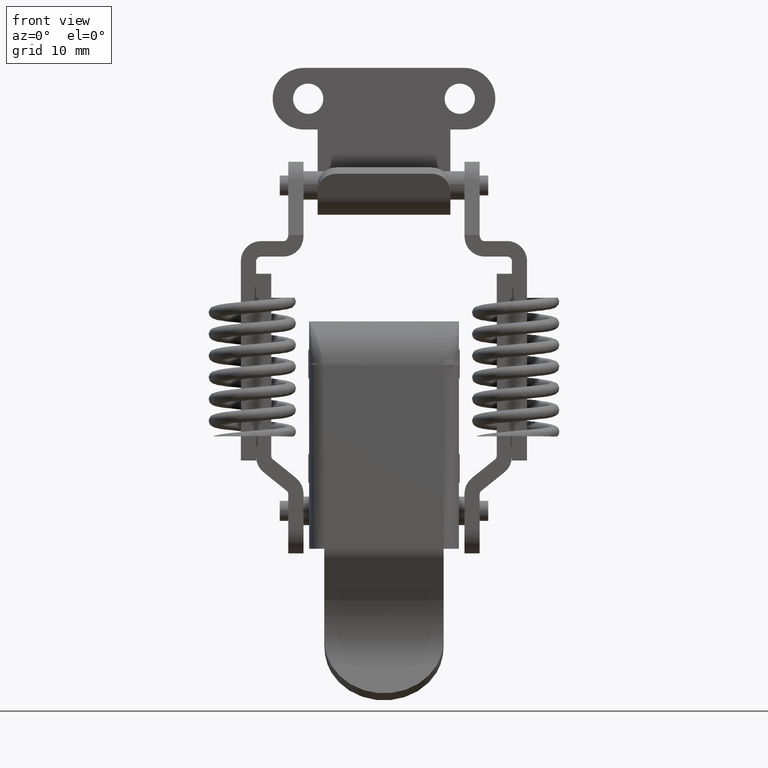
[diagram: clean part render]
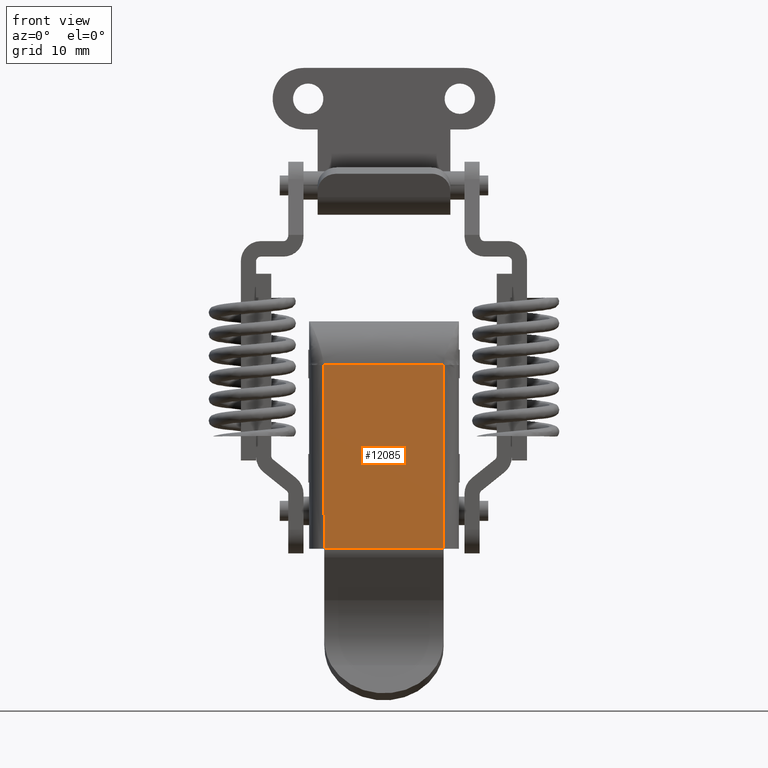
[diagram: same view with one face highlighted and labeled with its STEP entity id]
A machine part, front view. The second image highlights one B-rep face of the part: STEP entity #12085.
In plain terms, the highlighted face is a freeform B-spline surface patch.
Its self-contained STEP definition (entity closure, byte-faithful):
#9917=CARTESIAN_POINT('',(-8.699999999999999,6.400000000000000,-18.949999999999999));
#9918=VERTEX_POINT('',#9917);
#9994=CARTESIAN_POINT('',(-8.699999999999999,6.300000000000000,-38.350000000000001));
#9995=VERTEX_POINT('',#9994);
#10011=CARTESIAN_POINT('',(-8.699999999999999,6.400000000000000,-18.949999999999999));
#10012=CARTESIAN_POINT('',(-8.699999999999999,6.400000000000000,-25.416666666666600));
#10013=CARTESIAN_POINT('',(-8.699999999999999,6.350000000000000,-31.883333333333251));
#10014=CARTESIAN_POINT('',(-8.699999999999999,6.300000000000000,-38.350000000000001));
#10015=B_SPLINE_CURVE_WITH_KNOTS('',3,(#10011,#10012,#10013,#10014),.UNSPECIFIED.,.F.,.U.,(4,4),(0.666666666666667,1.000000000000000),.UNSPECIFIED.);
#10016=EDGE_CURVE('',#9918,#9995,#10015,.T.);
#10506=CARTESIAN_POINT('',(-8.699999999999999,-6.300000000000000,-18.949999999999999));
#10507=VERTEX_POINT('',#10506);
#10647=CARTESIAN_POINT('',(-8.699999999999999,-6.300000000000000,-38.350000000000001));
#10648=VERTEX_POINT('',#10647);
#10649=CARTESIAN_POINT('',(-8.699999999999999,-6.299999999999920,-38.350000000000001));
#10650=CARTESIAN_POINT('',(-8.699999999999999,-6.299999999999920,-31.883333333333251));
#10651=CARTESIAN_POINT('',(-8.699999999999999,-6.299999999999920,-25.416666666666551));
#10652=CARTESIAN_POINT('',(-8.699999999999999,-6.300000000000000,-18.949999999999999));
#10653=B_SPLINE_CURVE_WITH_KNOTS('',3,(#10649,#10650,#10651,#10652),.UNSPECIFIED.,.F.,.U.,(4,4),(0.0,0.333333333333333),.UNSPECIFIED.);
#10654=EDGE_CURVE('',#10648,#10507,#10653,.T.);
#10997=CARTESIAN_POINT('',(-8.699999999999999,6.300000000000000,-38.356775112142202));
#10998=VERTEX_POINT('',#10997);
#11019=CARTESIAN_POINT('',(-8.699999999999999,-6.300000000000000,-38.356775112142202));
#11020=VERTEX_POINT('',#11019);
#11034=CARTESIAN_POINT('',(-8.699999999999999,6.300000000000000,-38.356775112142202));
#11035=CARTESIAN_POINT('',(-8.699999999999999,-6.300000000000000,-38.356775112142202));
#11036=QUASI_UNIFORM_CURVE('',1,(#11034,#11035),.UNSPECIFIED.,.F.,.U.);
#11037=EDGE_CURVE('',#10998,#11020,#11036,.T.);
#11186=CARTESIAN_POINT('',(-8.699999999999999,-6.300000000000000,-38.350000000000001));
#11187=CARTESIAN_POINT('',(-8.699999999999999,-6.300000000000000,-38.356775112142202));
#11188=QUASI_UNIFORM_CURVE('',1,(#11186,#11187),.UNSPECIFIED.,.F.,.U.);
#11189=EDGE_CURVE('',#10648,#11020,#11188,.T.);
#11255=CARTESIAN_POINT('',(-8.699999999999999,6.300000000000000,-38.350000000000001));
#11256=CARTESIAN_POINT('',(-8.699999999999999,6.300000000000000,-38.356775112142202));
#11257=QUASI_UNIFORM_CURVE('',1,(#11255,#11256),.UNSPECIFIED.,.F.,.U.);
#11258=EDGE_CURVE('',#9995,#10998,#11257,.T.);
#12068=CARTESIAN_POINT('',(-8.699999999999999,-6.934365213821962,-39.326141600275783));
#12069=CARTESIAN_POINT('',(-8.699999999999999,-6.934365213821962,-17.980632644315978));
#12070=CARTESIAN_POINT('',(-8.699999999999999,7.034365327368811,-39.326141600275783));
#12071=CARTESIAN_POINT('',(-8.699999999999999,7.034365327368811,-17.980632644315978));
#12072=B_SPLINE_SURFACE_WITH_KNOTS('',1,1,((#12068,#12070),(#12069,#12071)),.UNSPECIFIED.,.F.,.F.,.U.,(2,2),(2,2),(0.0,21.345508955959811),(0.0,13.968730541190769),.UNSPECIFIED.);
#12073=CARTESIAN_POINT('',(-8.699999999999999,6.400000000000000,-18.949999999999999));
#12074=CARTESIAN_POINT('',(-8.699999999999999,-6.300000000000000,-18.949999999999999));
#12075=QUASI_UNIFORM_CURVE('',1,(#12073,#12074),.UNSPECIFIED.,.F.,.U.);
#12076=EDGE_CURVE('',#9918,#10507,#12075,.T.);
#12077=ORIENTED_EDGE('',*,*,#12076,.F.);
#12078=ORIENTED_EDGE('',*,*,#10016,.T.);
#12079=ORIENTED_EDGE('',*,*,#11258,.T.);
#12080=ORIENTED_EDGE('',*,*,#11037,.T.);
#12081=ORIENTED_EDGE('',*,*,#11189,.F.);
#12082=ORIENTED_EDGE('',*,*,#10654,.T.);
#12083=EDGE_LOOP('',(#12077,#12078,#12079,#12080,#12081,#12082));
#12084=FACE_OUTER_BOUND('',#12083,.T.);
#12085=ADVANCED_FACE('',(#12084),#12072,.T.);